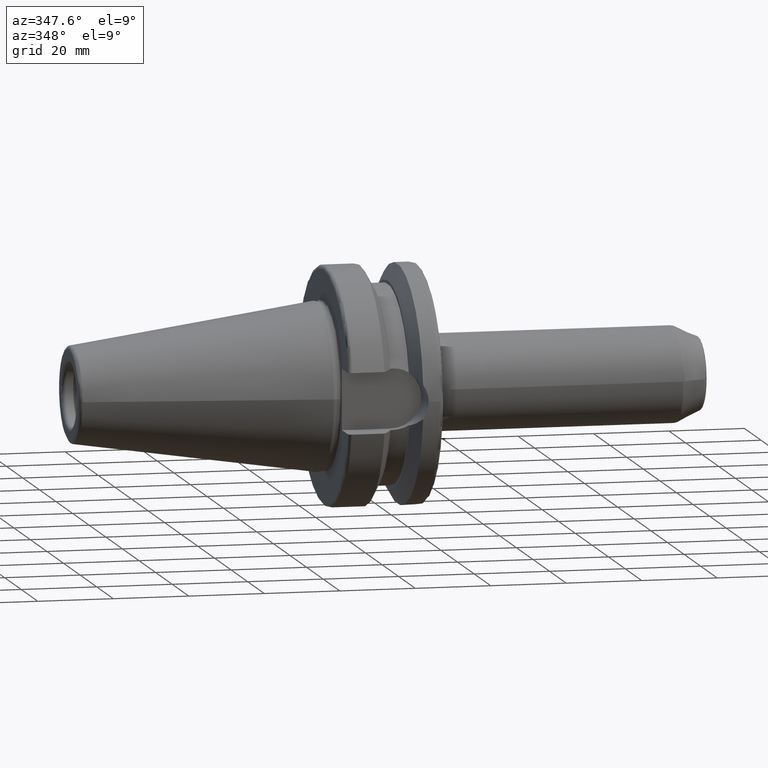
[diagram: clean part render]
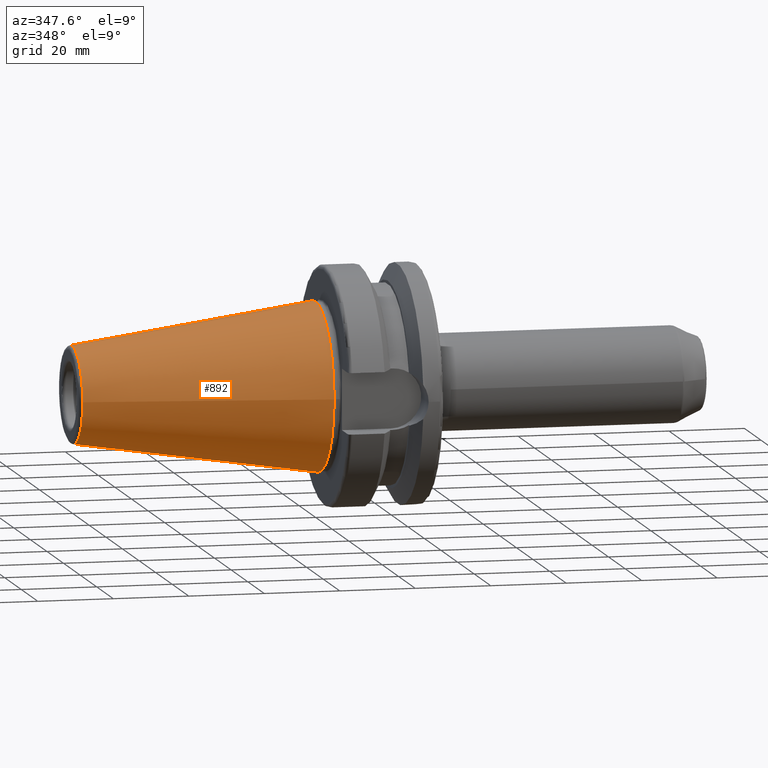
[diagram: same view with one face highlighted and labeled with its STEP entity id]
A machine part, auxiliary view. The second image highlights one B-rep face of the part: STEP entity #892.
In plain terms, the highlighted conical surface has half-angle 8.297 deg.
Its self-contained STEP definition (entity closure, byte-faithful):
#27=CONICAL_SURFACE('',#1011,17.5186442890469,0.144812498238939);
#92=LINE('',#1744,#137);
#137=VECTOR('',#1250,17.5186442890469);
#214=FACE_OUTER_BOUND('',#270,.T.);
#270=EDGE_LOOP('',(#767,#768,#769,#770,#771));
#331=CIRCLE('',#1007,12.8122885780937);
#332=CIRCLE('',#1008,12.8122885780937);
#335=CIRCLE('',#1012,22.225);
#429=VERTEX_POINT('',#1734);
#430=VERTEX_POINT('',#1735);
#432=VERTEX_POINT('',#1742);
#548=EDGE_CURVE('',#429,#430,#331,.T.);
#549=EDGE_CURVE('',#430,#429,#332,.T.);
#552=EDGE_CURVE('',#432,#432,#335,.T.);
#553=EDGE_CURVE('',#432,#429,#92,.T.);
#767=ORIENTED_EDGE('',*,*,#552,.F.);
#768=ORIENTED_EDGE('',*,*,#553,.T.);
#769=ORIENTED_EDGE('',*,*,#548,.T.);
#770=ORIENTED_EDGE('',*,*,#549,.T.);
#771=ORIENTED_EDGE('',*,*,#553,.F.);
#892=ADVANCED_FACE('',(#214),#27,.T.);
#1007=AXIS2_PLACEMENT_3D('',#1736,#1238,#1239);
#1008=AXIS2_PLACEMENT_3D('',#1737,#1240,#1241);
#1011=AXIS2_PLACEMENT_3D('',#1741,#1246,#1247);
#1012=AXIS2_PLACEMENT_3D('',#1743,#1248,#1249);
#1238=DIRECTION('center_axis',(1.,0.,0.));
#1239=DIRECTION('ref_axis',(0.,0.,-1.));
#1240=DIRECTION('center_axis',(1.,0.,0.));
#1241=DIRECTION('ref_axis',(0.,0.,-1.));
#1246=DIRECTION('center_axis',(1.,0.,0.));
#1247=DIRECTION('ref_axis',(0.,1.,0.));
#1248=DIRECTION('center_axis',(1.,0.,0.));
#1249=DIRECTION('ref_axis',(0.,0.,-1.));
#1250=DIRECTION('',(-0.989532981063282,0.144306893071729,1.76724974695192E-17));
#1734=CARTESIAN_POINT('',(-64.5443068930717,-12.8122885780937,-1.56905281969147E-15));
#1735=CARTESIAN_POINT('',(-64.5443068930717,-1.56905281969147E-15,12.8122885780937));
#1736=CARTESIAN_POINT('Origin',(-64.5443068930717,0.,0.));
#1737=CARTESIAN_POINT('Origin',(-64.5443068930717,0.,0.));
#1741=CARTESIAN_POINT('Origin',(-32.2721534465359,0.,0.));
#1742=CARTESIAN_POINT('',(4.44089209850063E-15,-22.225,-2.72177751110499E-15));
#1743=CARTESIAN_POINT('Origin',(0.,0.,0.));
#1744=CARTESIAN_POINT('',(-32.2721534465359,-17.5186442890469,-2.14541516539823E-15));